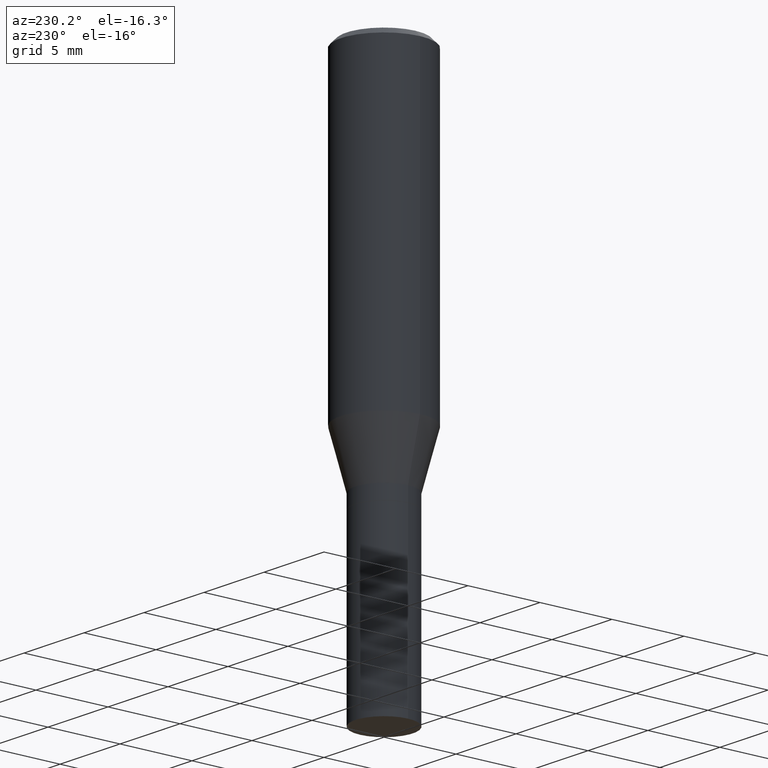
[diagram: clean part render]
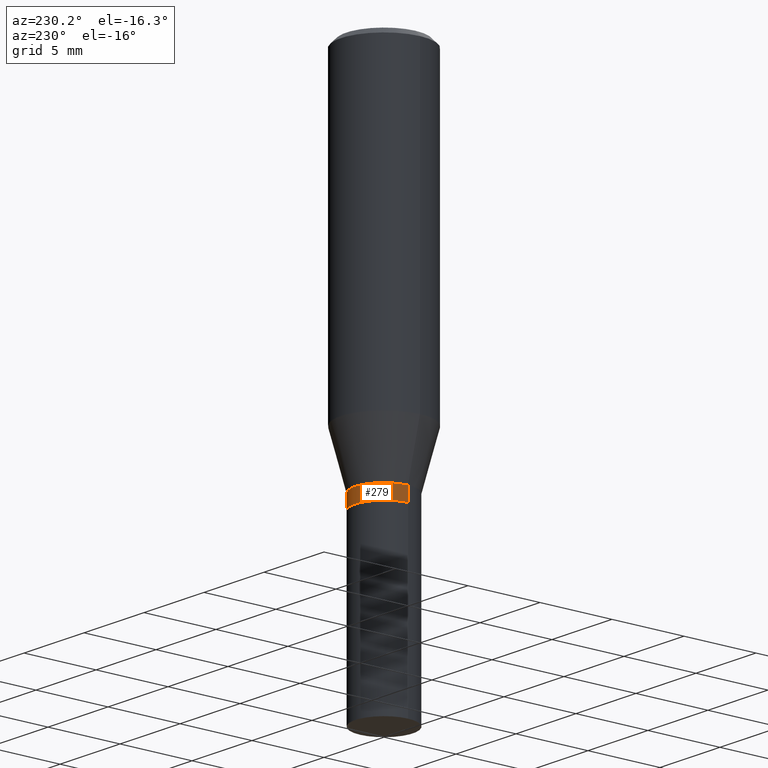
[diagram: same view with one face highlighted and labeled with its STEP entity id]
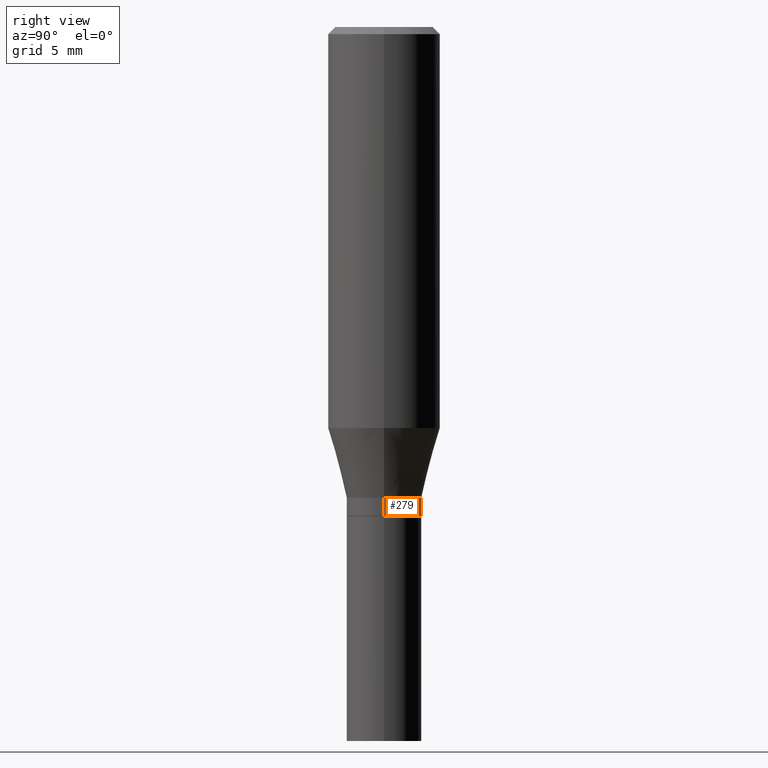
[diagram: same view with one face highlighted and labeled with its STEP entity id]
A machine part, auxiliary view. The second image highlights one B-rep face of the part: STEP entity #279.
A second angle (right view) of the same face is appended — the face is thin or edge-on in the first view.
In plain terms, the highlighted cylindrical surface (partial cylindrical patch) has radius 2.0003 mm, axis along (-0, 0, 1).
Its self-contained STEP definition (entity closure, byte-faithful):
#1 = CARTESIAN_POINT ( 'NONE',  ( 2.418568649317100009E-29, -3.453075044115871321E-15, -0.9889999999999999902 ) ) ;
#10 = EDGE_CURVE ( 'NONE', #69, #327, #122, .T. ) ;
#30 = DIRECTION ( 'NONE',  ( -2.445468806185136597E-29, 3.491481338843145583E-15, 1.000000000000000000 ) ) ;
#38 = EDGE_CURVE ( 'NONE', #123, #271, #232, .T. ) ;
#69 = VERTEX_POINT ( 'NONE', #94 ) ;
#74 = CARTESIAN_POINT ( 'NONE',  ( 0.000000000000000000, 0.000000000000000000, 0.000000000000000000 ) ) ;
#94 = CARTESIAN_POINT ( 'NONE',  ( 0.07875000000000018097, -4.136008793993590338E-15, -1.027100000000000124 ) ) ;
#110 = CARTESIAN_POINT ( 'NONE',  ( -0.07875000000000016709, -2.497350516807997556E-15, -0.9889999999999999902 ) ) ;
#122 = LINE ( 'NONE', #296, #458 ) ;
#123 = VERTEX_POINT ( 'NONE', #308 ) ;
#158 = ORIENTED_EDGE ( 'NONE', *, *, #351, .F. ) ;
#164 = CARTESIAN_POINT ( 'NONE',  ( -0.07875000000000018097, 5.595524044110801822E-16, -3.873661383575747601E-30 ) ) ;
#172 = DIRECTION ( 'NONE',  ( -2.445468806185136597E-29, 3.491481338843145583E-15, 1.000000000000000000 ) ) ;
#173 = ORIENTED_EDGE ( 'NONE', *, *, #402, .T. ) ;
#213 = DIRECTION ( 'NONE',  ( 1.000000000000000000, -6.982962677686265922E-15, 0.000000000000000000 ) ) ;
#215 = FACE_OUTER_BOUND ( 'NONE', #299, .T. ) ;
#224 = CIRCLE ( 'NONE', #266, 0.07875000000000016709 ) ;
#225 = ORIENTED_EDGE ( 'NONE', *, *, #10, .F. ) ;
#228 = DIRECTION ( 'NONE',  ( -2.445468806185136877E-29, 3.491481338843145188E-15, 1.000000000000000000 ) ) ;
#232 = LINE ( 'NONE', #164, #318 ) ;
#233 = AXIS2_PLACEMENT_3D ( 'NONE', #74, #247, #281 ) ;
#247 = DIRECTION ( 'NONE',  ( -2.445468806185136597E-29, 3.491481338843145583E-15, 1.000000000000000000 ) ) ;
#250 = CARTESIAN_POINT ( 'NONE',  ( 0.07875000000000016709, -4.002983354983665455E-15, -0.9889999999999999902 ) ) ;
#266 = AXIS2_PLACEMENT_3D ( 'NONE', #1, #172, #213 ) ;
#271 = VERTEX_POINT ( 'NONE', #110 ) ;
#279 = ADVANCED_FACE ( 'NONE', ( #215 ), #322, .T. ) ;
#281 = DIRECTION ( 'NONE',  ( 1.000000000000000000, -6.982962677686267499E-15, 4.876176775795936353E-29 ) ) ;
#296 = CARTESIAN_POINT ( 'NONE',  ( 0.07875000000000018097, -5.499083108677948248E-16, 3.839989210939308826E-30 ) ) ;
#299 = EDGE_LOOP ( 'NONE', ( #173, #439, #158, #225 ) ) ;
#308 = CARTESIAN_POINT ( 'NONE',  ( -0.07875000000000018097, -3.026548078714715430E-15, -1.027100000000000124 ) ) ;
#316 = DIRECTION ( 'NONE',  ( 1.000000000000000000, -6.982962677686265133E-15, 0.000000000000000000 ) ) ;
#318 = VECTOR ( 'NONE', #411, 39.37007874015748143 ) ;
#319 = CIRCLE ( 'NONE', #460, 0.07875000000000018097 ) ;
#322 = CYLINDRICAL_SURFACE ( 'NONE', #233, 0.07875000000000018097 ) ;
#325 = CARTESIAN_POINT ( 'NONE',  ( 2.511741010832753769E-29, -3.586100483125795415E-15, -1.027100000000000124 ) ) ;
#327 = VERTEX_POINT ( 'NONE', #250 ) ;
#351 = EDGE_CURVE ( 'NONE', #327, #271, #224, .T. ) ;
#402 = EDGE_CURVE ( 'NONE', #69, #123, #319, .T. ) ;
#411 = DIRECTION ( 'NONE',  ( -2.445468806185136877E-29, 3.491481338843145188E-15, 1.000000000000000000 ) ) ;
#439 = ORIENTED_EDGE ( 'NONE', *, *, #38, .T. ) ;
#458 = VECTOR ( 'NONE', #228, 39.37007874015748143 ) ;
#460 = AXIS2_PLACEMENT_3D ( 'NONE', #325, #30, #316 ) ;